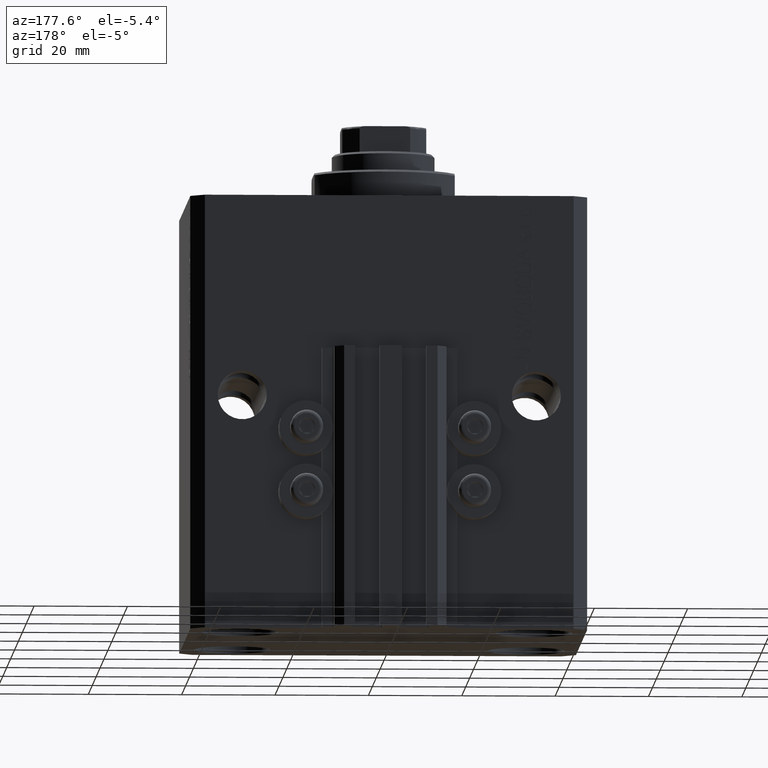
[diagram: clean part render]
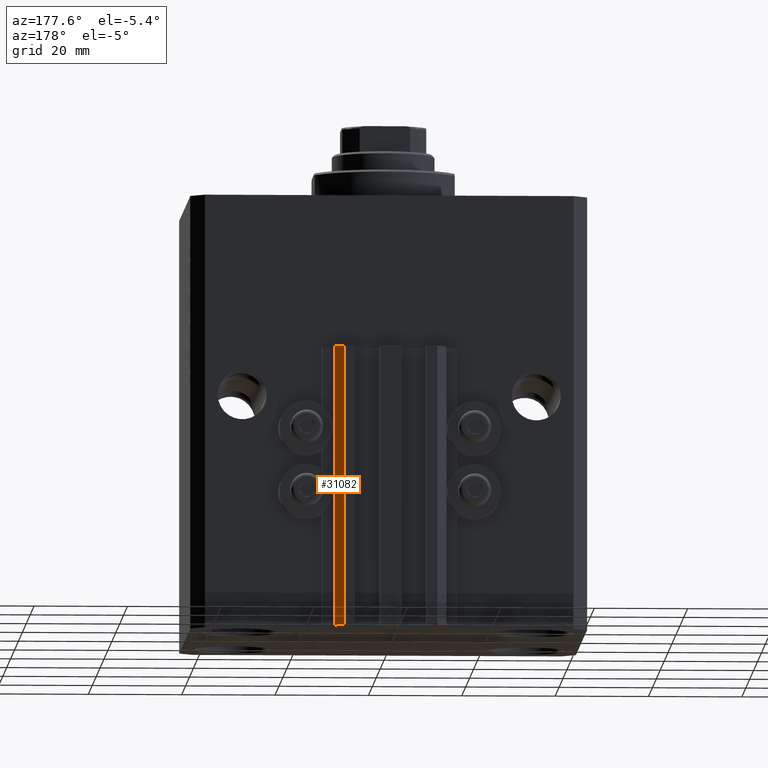
[diagram: same view with one face highlighted and labeled with its STEP entity id]
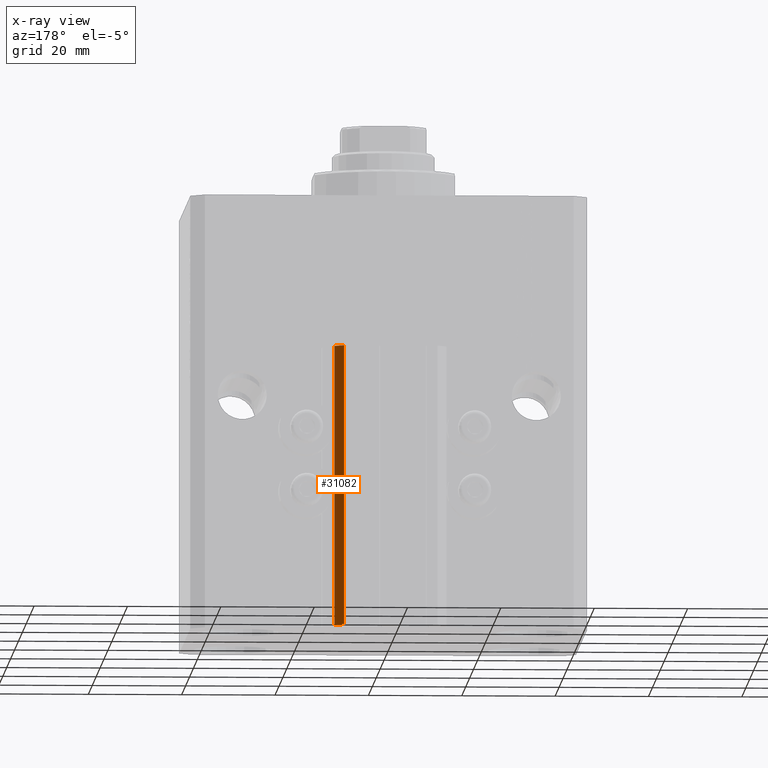
[diagram: x-ray of the same camera — body ghosted, the highlighted face saturated]
A machine part, auxiliary view. The second image highlights one B-rep face of the part: STEP entity #31082.
The next image is the same camera in x-ray: the body ghosted, the highlighted face saturated — about 0% of this face is hidden behind the body in this view.
In plain terms, the highlighted planar face has unit normal (0.7071, 0.7071, 0).
Its self-contained STEP definition (entity closure, byte-faithful):
#750 = VERTEX_POINT ( 'NONE', #11327 ) ;
#1882 = LINE ( 'NONE', #20390, #33017 ) ;
#3704 = CARTESIAN_POINT ( 'NONE',  ( 12.00000000000000000, 37.50000000000002132, -93.00000000000000000 ) ) ;
#5220 = VERTEX_POINT ( 'NONE', #15027 ) ;
#5236 = ORIENTED_EDGE ( 'NONE', *, *, #38023, .T. ) ;
#9510 = DIRECTION ( 'NONE',  ( -0.7071067811865474617, 0.7071067811865474617, 0.000000000000000000 ) ) ;
#9588 = DIRECTION ( 'NONE',  ( -0.7071067811865474617, 0.7071067811865474617, 0.000000000000000000 ) ) ;
#9681 = VECTOR ( 'NONE', #21011, 1000.000000000000000 ) ;
#10943 = LINE ( 'NONE', #3704, #26965 ) ;
#11327 = CARTESIAN_POINT ( 'NONE',  ( 12.00000000000000000, 37.50000000000002132, -33.00000000000000000 ) ) ;
#11811 = VERTEX_POINT ( 'NONE', #39604 ) ;
#12823 = LINE ( 'NONE', #23621, #28364 ) ;
#13690 = AXIS2_PLACEMENT_3D ( 'NONE', #20080, #34746, #9510 ) ;
#15027 = CARTESIAN_POINT ( 'NONE',  ( 12.00000000000000000, 37.50000000000002132, -93.00000000000000000 ) ) ;
#17418 = LINE ( 'NONE', #25325, #9681 ) ;
#20080 = CARTESIAN_POINT ( 'NONE',  ( 12.00000000000000000, 37.50000000000002132, -93.00000000000000000 ) ) ;
#20390 = CARTESIAN_POINT ( 'NONE',  ( 12.00000000000000000, 37.50000000000002132, -93.00000000000000000 ) ) ;
#21011 = DIRECTION ( 'NONE',  ( 0.000000000000000000, 0.000000000000000000, 1.000000000000000000 ) ) ;
#21014 = ORIENTED_EDGE ( 'NONE', *, *, #21974, .T. ) ;
#21974 = EDGE_CURVE ( 'NONE', #41864, #11811, #17418, .T. ) ;
#23621 = CARTESIAN_POINT ( 'NONE',  ( 12.00000000000000000, 37.50000000000002132, -33.00000000000000000 ) ) ;
#23997 = ORIENTED_EDGE ( 'NONE', *, *, #31355, .F. ) ;
#25325 = CARTESIAN_POINT ( 'NONE',  ( 9.999999999999998224, 39.50000000000002132, -93.00000000000000000 ) ) ;
#26965 = VECTOR ( 'NONE', #32576, 1000.000000000000000 ) ;
#27947 = DIRECTION ( 'NONE',  ( -0.7071067811865474617, 0.7071067811865474617, 0.000000000000000000 ) ) ;
#28364 = VECTOR ( 'NONE', #27947, 1000.000000000000114 ) ;
#31082 = ADVANCED_FACE ( 'NONE', ( #42922 ), #42455, .T. ) ;
#31355 = EDGE_CURVE ( 'NONE', #750, #11811, #12823, .T. ) ;
#32576 = DIRECTION ( 'NONE',  ( 0.000000000000000000, 0.000000000000000000, 1.000000000000000000 ) ) ;
#33017 = VECTOR ( 'NONE', #9588, 1000.000000000000114 ) ;
#34746 = DIRECTION ( 'NONE',  ( 0.7071067811865475727, 0.7071067811865475727, -0.000000000000000000 ) ) ;
#36769 = ORIENTED_EDGE ( 'NONE', *, *, #43955, .F. ) ;
#37695 = CARTESIAN_POINT ( 'NONE',  ( 9.999999999999998224, 39.50000000000002132, -93.00000000000000000 ) ) ;
#38023 = EDGE_CURVE ( 'NONE', #5220, #41864, #1882, .T. ) ;
#39604 = CARTESIAN_POINT ( 'NONE',  ( 9.999999999999998224, 39.50000000000002132, -33.00000000000000000 ) ) ;
#41519 = EDGE_LOOP ( 'NONE', ( #23997, #36769, #5236, #21014 ) ) ;
#41864 = VERTEX_POINT ( 'NONE', #37695 ) ;
#42455 = PLANE ( 'NONE',  #13690 ) ;
#42922 = FACE_OUTER_BOUND ( 'NONE', #41519, .T. ) ;
#43955 = EDGE_CURVE ( 'NONE', #5220, #750, #10943, .T. ) ;